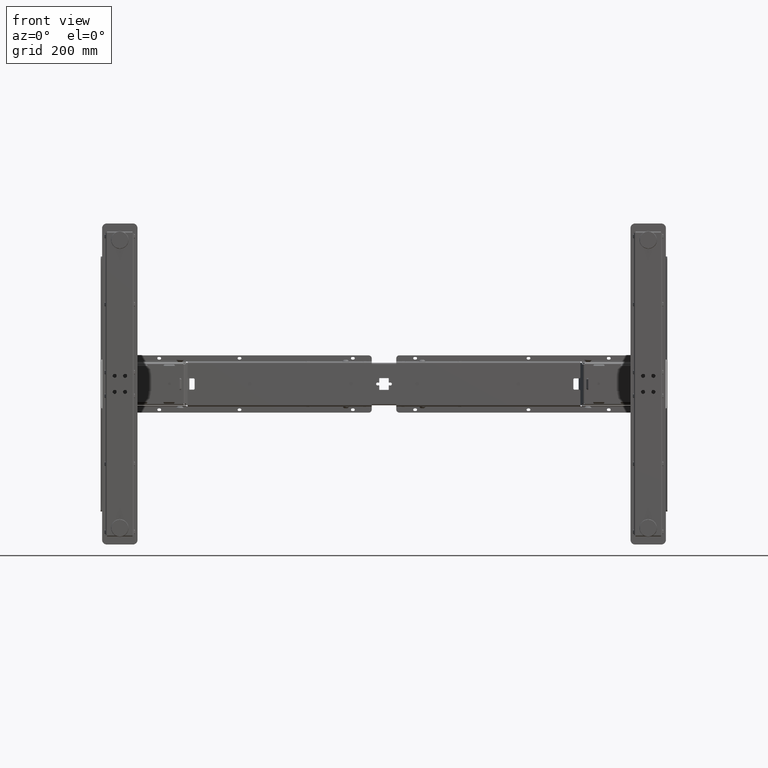
[diagram: clean part render]
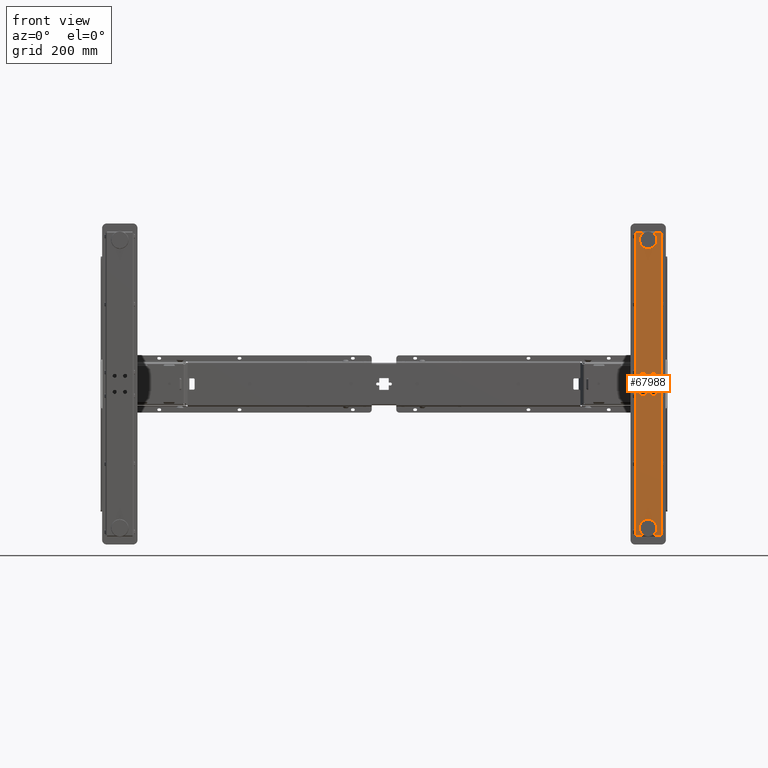
[diagram: same view with one face highlighted and labeled with its STEP entity id]
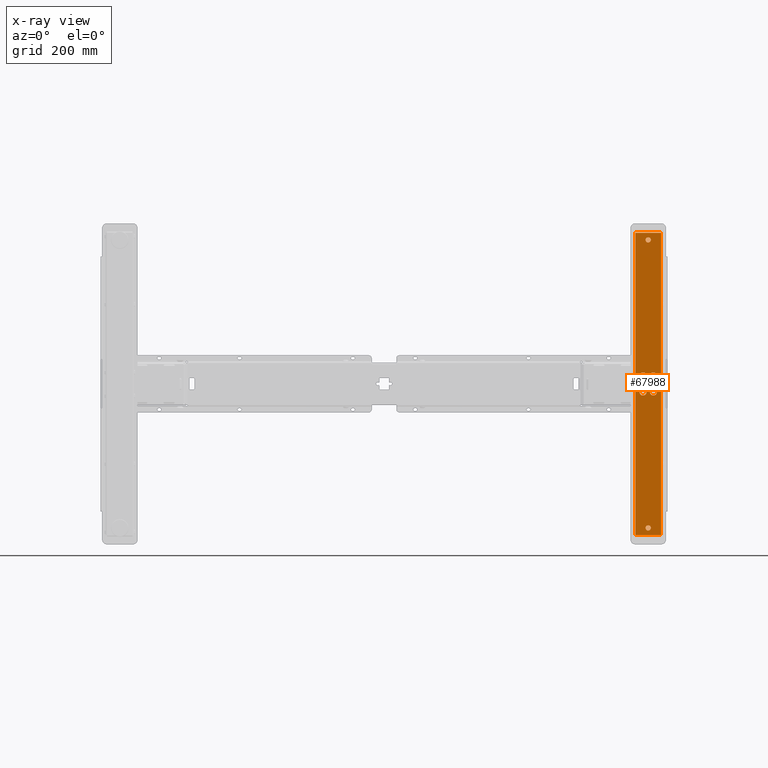
[diagram: x-ray of the same camera — body ghosted, the highlighted face saturated]
A machine part, front view. The second image highlights one B-rep face of the part: STEP entity #67988.
The next image is the same camera in x-ray: the body ghosted, the highlighted face saturated — about 0% of this face is hidden behind the body in this view.
In plain terms, the highlighted planar face has unit normal (0, 1, 0).
Its self-contained STEP definition (entity closure, byte-faithful):
#15 = EDGE_CURVE ( 'NONE', #50905, #86805, #106388, .T. ) ;
#607 = ORIENTED_EDGE ( 'NONE', *, *, #15, .F. ) ;
#727 = VERTEX_POINT ( 'NONE', #1024 ) ;
#1024 = CARTESIAN_POINT ( 'NONE',  ( 586.4999999999997726, 9.100000000002093969, 320.0000000000000568 ) ) ;
#1249 = AXIS2_PLACEMENT_3D ( 'NONE', #80539, #46714, #14092 ) ;
#1396 = EDGE_CURVE ( 'NONE', #99969, #83331, #55265, .T. ) ;
#1472 = EDGE_CURVE ( 'NONE', #83331, #99969, #3954, .T. ) ;
#1520 = VERTEX_POINT ( 'NONE', #76250 ) ;
#2002 = AXIS2_PLACEMENT_3D ( 'NONE', #91413, #23791, #98061 ) ;
#2998 = ORIENTED_EDGE ( 'NONE', *, *, #82310, .T. ) ;
#3156 = DIRECTION ( 'NONE',  ( 0.000000000000000000, 1.000000000000000000, 0.000000000000000000 ) ) ;
#3447 = CARTESIAN_POINT ( 'NONE',  ( 570.4999999999998863, 9.100000000001022826, -17.00000000000001421 ) ) ;
#3551 = EDGE_CURVE ( 'NONE', #20081, #1520, #9357, .T. ) ;
#3606 = EDGE_CURVE ( 'NONE', #727, #67522, #71243, .T. ) ;
#3954 = CIRCLE ( 'NONE', #106624, 7.500000000000000000 ) ;
#5737 = EDGE_LOOP ( 'NONE', ( #65621, #11774 ) ) ;
#6525 = CIRCLE ( 'NONE', #1249, 5.500000000000005329 ) ;
#7727 = CARTESIAN_POINT ( 'NONE',  ( 548.4999999999998863, 9.100000000001022826, -17.00000000000001421 ) ) ;
#9357 = CIRCLE ( 'NONE', #25236, 7.500000000000000000 ) ;
#10111 = CARTESIAN_POINT ( 'NONE',  ( 529.4999999999998863, 9.100000000002106404, 323.0000000000000568 ) ) ;
#11173 = FACE_BOUND ( 'NONE', #30688, .T. ) ;
#11774 = ORIENTED_EDGE ( 'NONE', *, *, #1472, .T. ) ;
#12521 = DIRECTION ( 'NONE',  ( 0.000000000000000000, 1.000000000000000000, 0.000000000000000000 ) ) ;
#12688 = EDGE_CURVE ( 'NONE', #1520, #20081, #51760, .T. ) ;
#13283 = ORIENTED_EDGE ( 'NONE', *, *, #72195, .F. ) ;
#14092 = DIRECTION ( 'NONE',  ( 0.000000000000000000, 0.000000000000000000, -1.000000000000000000 ) ) ;
#14194 = CARTESIAN_POINT ( 'NONE',  ( 548.4999999999998863, 9.100000000001022826, -17.00000000000001421 ) ) ;
#15103 = AXIS2_PLACEMENT_3D ( 'NONE', #10111, #61040, #27793 ) ;
#16459 = DIRECTION ( 'NONE',  ( 0.000000000000000000, 1.000000000000000000, 0.000000000000000000 ) ) ;
#16501 = VERTEX_POINT ( 'NONE', #71569 ) ;
#18306 = CARTESIAN_POINT ( 'NONE',  ( 548.4999999999998863, 9.100000000001022826, -9.500000000000015987 ) ) ;
#18502 = VERTEX_POINT ( 'NONE', #72972 ) ;
#18744 = CARTESIAN_POINT ( 'NONE',  ( 559.4999999999998863, 9.100000000002106404, -299.5000000000000000 ) ) ;
#19479 = FACE_BOUND ( 'NONE', #52512, .T. ) ;
#20081 = VERTEX_POINT ( 'NONE', #18306 ) ;
#21378 = CARTESIAN_POINT ( 'NONE',  ( 586.4999999999997726, 9.100000000002106404, -319.9999999999999432 ) ) ;
#23791 = DIRECTION ( 'NONE',  ( 0.000000000000000000, 1.000000000000000000, 0.000000000000000000 ) ) ;
#24375 = DIRECTION ( 'NONE',  ( 0.000000000000000000, -1.000000000000000000, 0.000000000000000000 ) ) ;
#24714 = VERTEX_POINT ( 'NONE', #102083 ) ;
#24769 = CARTESIAN_POINT ( 'NONE',  ( 570.4999999999998863, 9.100000000001022826, 17.00000000000001421 ) ) ;
#25236 = AXIS2_PLACEMENT_3D ( 'NONE', #14194, #12521, #88961 ) ;
#25413 = DIRECTION ( 'NONE',  ( 0.000000000000000000, 0.000000000000000000, 1.000000000000000000 ) ) ;
#26688 = ORIENTED_EDGE ( 'NONE', *, *, #12688, .T. ) ;
#26910 = DIRECTION ( 'NONE',  ( 0.000000000000000000, 1.000000000000000000, 0.000000000000000000 ) ) ;
#27035 = VECTOR ( 'NONE', #47945, 1000.000000000000000 ) ;
#27236 = FACE_BOUND ( 'NONE', #86872, .T. ) ;
#27396 = CARTESIAN_POINT ( 'NONE',  ( 548.4999999999998863, 9.100000000001022826, 24.50000000000001421 ) ) ;
#27793 = DIRECTION ( 'NONE',  ( 0.000000000000000000, -0.000000000000000000, 1.000000000000000000 ) ) ;
#27982 = VECTOR ( 'NONE', #48363, 1000.000000000000000 ) ;
#28786 = EDGE_CURVE ( 'NONE', #24714, #67522, #94835, .T. ) ;
#29875 = DIRECTION ( 'NONE',  ( 0.000000000000000000, 1.000000000000000000, 0.000000000000000000 ) ) ;
#30688 = EDGE_LOOP ( 'NONE', ( #104518, #26688 ) ) ;
#31006 = CARTESIAN_POINT ( 'NONE',  ( 559.4999999999998863, 9.100000000002106404, 305.0000000000000568 ) ) ;
#31996 = EDGE_CURVE ( 'NONE', #71624, #18502, #84640, .T. ) ;
#32180 = EDGE_CURVE ( 'NONE', #76570, #24714, #54702, .T. ) ;
#32431 = DIRECTION ( 'NONE',  ( 0.000000000000000000, 0.000000000000000000, -1.000000000000000000 ) ) ;
#32618 = DIRECTION ( 'NONE',  ( 0.000000000000000000, 1.000000000000000000, 0.000000000000000000 ) ) ;
#34254 = CARTESIAN_POINT ( 'NONE',  ( 559.4999999999998863, 9.100000000002106404, 299.5000000000000568 ) ) ;
#36970 = DIRECTION ( 'NONE',  ( -0.000000000000000000, -0.000000000000000000, -1.000000000000000000 ) ) ;
#37086 = ORIENTED_EDGE ( 'NONE', *, *, #3606, .F. ) ;
#38466 = DIRECTION ( 'NONE',  ( 0.000000000000000000, 0.000000000000000000, 1.000000000000000000 ) ) ;
#41149 = VERTEX_POINT ( 'NONE', #27396 ) ;
#41689 = EDGE_LOOP ( 'NONE', ( #95759, #13283 ) ) ;
#43479 = ORIENTED_EDGE ( 'NONE', *, *, #107043, .T. ) ;
#43610 = DIRECTION ( 'NONE',  ( 0.000000000000000000, 0.000000000000000000, 1.000000000000000000 ) ) ;
#44009 = ORIENTED_EDGE ( 'NONE', *, *, #89494, .T. ) ;
#44392 = FACE_BOUND ( 'NONE', #41689, .T. ) ;
#44900 = CARTESIAN_POINT ( 'NONE',  ( 532.4999999999998863, 9.100000000002095746, -319.9999999999999432 ) ) ;
#46714 = DIRECTION ( 'NONE',  ( 0.000000000000000000, -1.000000000000000000, 0.000000000000000000 ) ) ;
#47094 = DIRECTION ( 'NONE',  ( 0.000000000000000000, 0.000000000000000000, -1.000000000000000000 ) ) ;
#47945 = DIRECTION ( 'NONE',  ( -0.000000000000000000, -0.000000000000000000, -1.000000000000000000 ) ) ;
#48363 = DIRECTION ( 'NONE',  ( -1.000000000000000000, -0.000000000000000000, -0.000000000000000000 ) ) ;
#50073 = EDGE_LOOP ( 'NONE', ( #607, #99206 ) ) ;
#50905 = VERTEX_POINT ( 'NONE', #85855 ) ;
#51760 = CIRCLE ( 'NONE', #94234, 7.500000000000000000 ) ;
#52189 = PLANE ( 'NONE',  #15103 ) ;
#52512 = EDGE_LOOP ( 'NONE', ( #44009, #98399 ) ) ;
#54702 = LINE ( 'NONE', #80215, #95207 ) ;
#55265 = CIRCLE ( 'NONE', #104777, 7.500000000000000000 ) ;
#55621 = VERTEX_POINT ( 'NONE', #95882 ) ;
#55659 = CIRCLE ( 'NONE', #75152, 5.500000000000005329 ) ;
#57162 = CARTESIAN_POINT ( 'NONE',  ( 559.4999999999998863, 9.100000000002106404, 305.0000000000000568 ) ) ;
#57721 = DIRECTION ( 'NONE',  ( 0.000000000000000000, -1.000000000000000000, 0.000000000000000000 ) ) ;
#57984 = CARTESIAN_POINT ( 'NONE',  ( 570.4999999999998863, 9.100000000001022826, -17.00000000000001421 ) ) ;
#58274 = ORIENTED_EDGE ( 'NONE', *, *, #32180, .T. ) ;
#58630 = AXIS2_PLACEMENT_3D ( 'NONE', #91765, #108893, #32431 ) ;
#59644 = DIRECTION ( 'NONE',  ( 0.000000000000000000, 0.000000000000000000, 1.000000000000000000 ) ) ;
#61040 = DIRECTION ( 'NONE',  ( 0.000000000000000000, 1.000000000000000000, 0.000000000000000000 ) ) ;
#64581 = CARTESIAN_POINT ( 'NONE',  ( 586.4999999999997726, 9.100000000002106404, 323.0000000000000568 ) ) ;
#65621 = ORIENTED_EDGE ( 'NONE', *, *, #1396, .T. ) ;
#66660 = CIRCLE ( 'NONE', #82533, 7.500000000000000000 ) ;
#67522 = VERTEX_POINT ( 'NONE', #21378 ) ;
#67988 = ADVANCED_FACE ( 'NONE', ( #27236, #19479, #69908, #11173, #44392, #94317, #103690 ), #52189, .F. ) ;
#68138 = CARTESIAN_POINT ( 'NONE',  ( 570.4999999999998863, 9.100000000001022826, -24.50000000000001421 ) ) ;
#69117 = CARTESIAN_POINT ( 'NONE',  ( 548.4999999999998863, 9.100000000001022826, 17.00000000000001421 ) ) ;
#69908 = FACE_BOUND ( 'NONE', #5737, .T. ) ;
#71243 = LINE ( 'NONE', #64581, #27035 ) ;
#71569 = CARTESIAN_POINT ( 'NONE',  ( 548.4999999999998863, 9.100000000001022826, 9.500000000000014211 ) ) ;
#71624 = VERTEX_POINT ( 'NONE', #34254 ) ;
#72195 = EDGE_CURVE ( 'NONE', #18502, #71624, #55659, .T. ) ;
#72398 = CIRCLE ( 'NONE', #97236, 7.500000000000000000 ) ;
#72972 = CARTESIAN_POINT ( 'NONE',  ( 559.4999999999998863, 9.100000000002106404, 310.5000000000000568 ) ) ;
#75152 = AXIS2_PLACEMENT_3D ( 'NONE', #57162, #57721, #99854 ) ;
#76250 = CARTESIAN_POINT ( 'NONE',  ( 548.4999999999998863, 9.100000000001022826, -24.50000000000001421 ) ) ;
#76570 = VERTEX_POINT ( 'NONE', #98481 ) ;
#76720 = CARTESIAN_POINT ( 'NONE',  ( 570.4999999999998863, 9.100000000001022826, 24.50000000000001421 ) ) ;
#79802 = CIRCLE ( 'NONE', #2002, 7.500000000000000000 ) ;
#80215 = CARTESIAN_POINT ( 'NONE',  ( 532.4999999999998863, 9.100000000002106404, 323.0000000000000568 ) ) ;
#80539 = CARTESIAN_POINT ( 'NONE',  ( 559.4999999999998863, 9.100000000002106404, -305.0000000000000000 ) ) ;
#82310 = EDGE_CURVE ( 'NONE', #16501, #41149, #66660, .T. ) ;
#82533 = AXIS2_PLACEMENT_3D ( 'NONE', #69117, #3156, #43610 ) ;
#83331 = VERTEX_POINT ( 'NONE', #68138 ) ;
#84077 = VECTOR ( 'NONE', #96449, 1000.000000000000000 ) ;
#84246 = EDGE_CURVE ( 'NONE', #86805, #50905, #6525, .T. ) ;
#84428 = CIRCLE ( 'NONE', #96716, 7.500000000000000000 ) ;
#84640 = CIRCLE ( 'NONE', #91684, 5.500000000000005329 ) ;
#85702 = ORIENTED_EDGE ( 'NONE', *, *, #28786, .T. ) ;
#85855 = CARTESIAN_POINT ( 'NONE',  ( 559.4999999999998863, 9.100000000002106404, -310.5000000000000000 ) ) ;
#86805 = VERTEX_POINT ( 'NONE', #18744 ) ;
#86872 = EDGE_LOOP ( 'NONE', ( #43479, #2998 ) ) ;
#88465 = CARTESIAN_POINT ( 'NONE',  ( 570.4999999999998863, 9.100000000001022826, -9.500000000000015987 ) ) ;
#88679 = VERTEX_POINT ( 'NONE', #76720 ) ;
#88961 = DIRECTION ( 'NONE',  ( 0.000000000000000000, 0.000000000000000000, 1.000000000000000000 ) ) ;
#89166 = DIRECTION ( 'NONE',  ( 0.000000000000000000, 0.000000000000000000, 1.000000000000000000 ) ) ;
#89494 = EDGE_CURVE ( 'NONE', #88679, #55621, #84428, .T. ) ;
#89558 = ORIENTED_EDGE ( 'NONE', *, *, #93409, .T. ) ;
#91038 = LINE ( 'NONE', #92142, #27982 ) ;
#91413 = CARTESIAN_POINT ( 'NONE',  ( 570.4999999999998863, 9.100000000001022826, 17.00000000000001421 ) ) ;
#91684 = AXIS2_PLACEMENT_3D ( 'NONE', #31006, #24375, #47094 ) ;
#91765 = CARTESIAN_POINT ( 'NONE',  ( 559.4999999999998863, 9.100000000002106404, -305.0000000000000000 ) ) ;
#92142 = CARTESIAN_POINT ( 'NONE',  ( 586.4999999999997726, 9.100000000002093969, 320.0000000000000568 ) ) ;
#93409 = EDGE_CURVE ( 'NONE', #727, #76570, #91038, .T. ) ;
#94234 = AXIS2_PLACEMENT_3D ( 'NONE', #7727, #32618, #25413 ) ;
#94317 = FACE_BOUND ( 'NONE', #50073, .T. ) ;
#94835 = LINE ( 'NONE', #44900, #84077 ) ;
#95207 = VECTOR ( 'NONE', #36970, 1000.000000000000000 ) ;
#95432 = DIRECTION ( 'NONE',  ( 0.000000000000000000, 1.000000000000000000, 0.000000000000000000 ) ) ;
#95759 = ORIENTED_EDGE ( 'NONE', *, *, #31996, .F. ) ;
#95882 = CARTESIAN_POINT ( 'NONE',  ( 570.4999999999998863, 9.100000000001022826, 9.500000000000014211 ) ) ;
#96449 = DIRECTION ( 'NONE',  ( 1.000000000000000000, -0.000000000000000000, -0.000000000000000000 ) ) ;
#96716 = AXIS2_PLACEMENT_3D ( 'NONE', #24769, #16459, #59644 ) ;
#97236 = AXIS2_PLACEMENT_3D ( 'NONE', #102833, #26910, #38466 ) ;
#98061 = DIRECTION ( 'NONE',  ( 0.000000000000000000, 0.000000000000000000, 1.000000000000000000 ) ) ;
#98399 = ORIENTED_EDGE ( 'NONE', *, *, #100777, .T. ) ;
#98481 = CARTESIAN_POINT ( 'NONE',  ( 532.4999999999998863, 9.100000000002106404, 320.0000000000000568 ) ) ;
#99206 = ORIENTED_EDGE ( 'NONE', *, *, #84246, .F. ) ;
#99854 = DIRECTION ( 'NONE',  ( 0.000000000000000000, 0.000000000000000000, -1.000000000000000000 ) ) ;
#99969 = VERTEX_POINT ( 'NONE', #88465 ) ;
#100272 = EDGE_LOOP ( 'NONE', ( #85702, #37086, #89558, #58274 ) ) ;
#100777 = EDGE_CURVE ( 'NONE', #55621, #88679, #79802, .T. ) ;
#102083 = CARTESIAN_POINT ( 'NONE',  ( 532.4999999999998863, 9.100000000002095746, -319.9999999999999432 ) ) ;
#102833 = CARTESIAN_POINT ( 'NONE',  ( 548.4999999999998863, 9.100000000001022826, 17.00000000000001421 ) ) ;
#103690 = FACE_OUTER_BOUND ( 'NONE', #100272, .T. ) ;
#104268 = DIRECTION ( 'NONE',  ( 0.000000000000000000, 0.000000000000000000, 1.000000000000000000 ) ) ;
#104518 = ORIENTED_EDGE ( 'NONE', *, *, #3551, .T. ) ;
#104777 = AXIS2_PLACEMENT_3D ( 'NONE', #3447, #95432, #104268 ) ;
#106388 = CIRCLE ( 'NONE', #58630, 5.500000000000005329 ) ;
#106624 = AXIS2_PLACEMENT_3D ( 'NONE', #57984, #29875, #89166 ) ;
#107043 = EDGE_CURVE ( 'NONE', #41149, #16501, #72398, .T. ) ;
#108893 = DIRECTION ( 'NONE',  ( 0.000000000000000000, -1.000000000000000000, 0.000000000000000000 ) ) ;